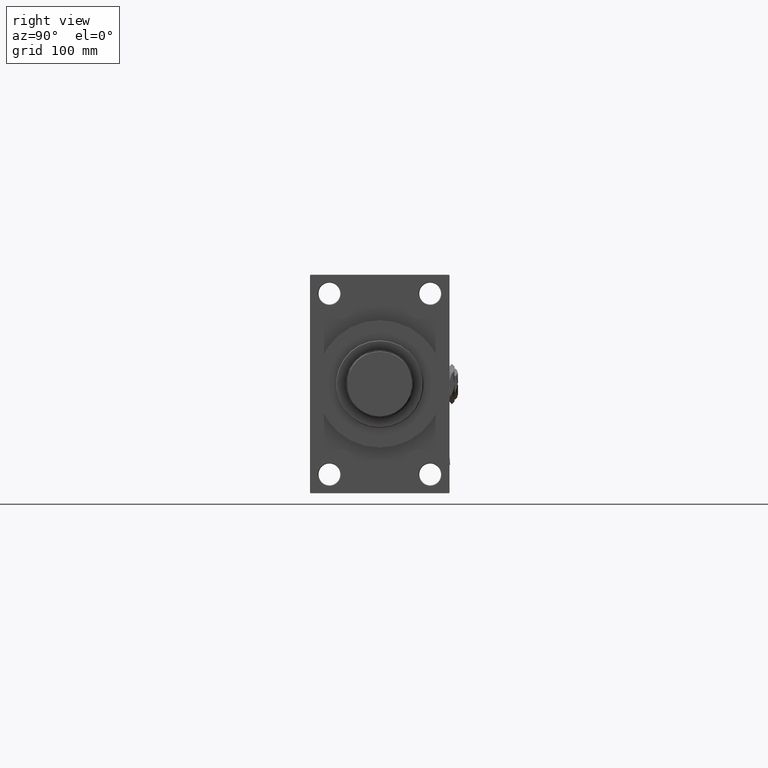
[diagram: clean part render]
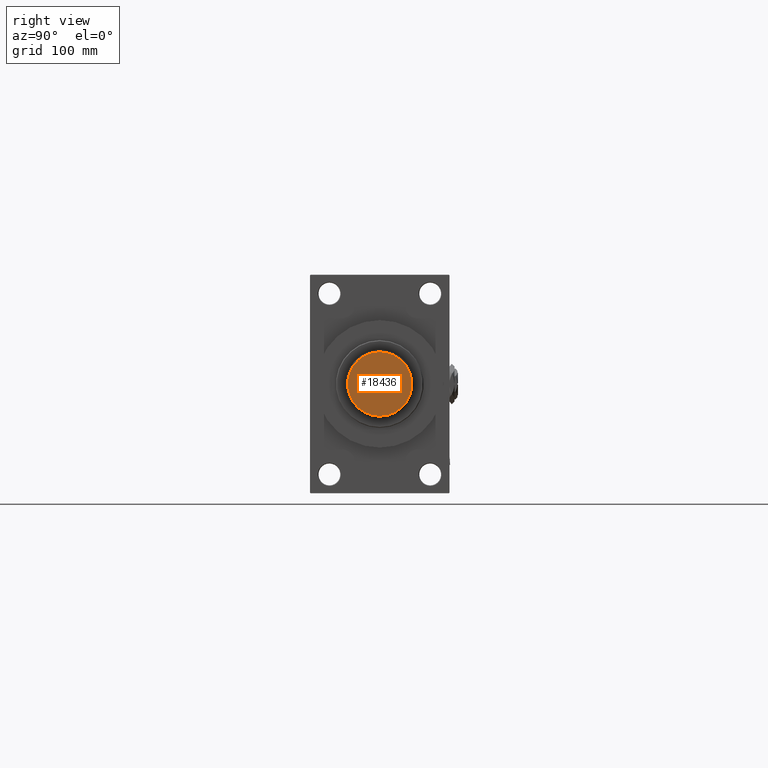
[diagram: same view with one face highlighted and labeled with its STEP entity id]
A machine part, right view. The second image highlights one B-rep face of the part: STEP entity #18436.
In plain terms, the highlighted planar face has unit normal (1, 0, 0).
Its self-contained STEP definition (entity closure, byte-faithful):
#955 = CARTESIAN_POINT ( 'NONE',  ( 0.000000000000000000, 0.000000000000000000, 0.000000000000000000 ) ) ;
#2101 = FACE_OUTER_BOUND ( 'NONE', #17096, .T. ) ;
#2270 = CARTESIAN_POINT ( 'NONE',  ( 26.50000000000000000, 0.000000000000000000, 0.000000000000000000 ) ) ;
#6286 = PLANE ( 'NONE',  #6795 ) ;
#6795 = AXIS2_PLACEMENT_3D ( 'NONE', #17823, #14643, #34596 ) ;
#7198 = DIRECTION ( 'NONE',  ( 0.000000000000000000, 0.000000000000000000, 1.000000000000000000 ) ) ;
#8005 = VERTEX_POINT ( 'NONE', #2270 ) ;
#11275 = EDGE_CURVE ( 'NONE', #8005, #46667, #35810, .T. ) ;
#14643 = DIRECTION ( 'NONE',  ( 0.000000000000000000, 0.000000000000000000, 1.000000000000000000 ) ) ;
#17096 = EDGE_LOOP ( 'NONE', ( #19472, #26875 ) ) ;
#17395 = AXIS2_PLACEMENT_3D ( 'NONE', #34738, #7198, #23709 ) ;
#17823 = CARTESIAN_POINT ( 'NONE',  ( 0.000000000000000000, 0.000000000000000000, 0.000000000000000000 ) ) ;
#18436 = ADVANCED_FACE ( 'NONE', ( #2101 ), #6286, .T. ) ;
#19472 = ORIENTED_EDGE ( 'NONE', *, *, #11275, .T. ) ;
#23709 = DIRECTION ( 'NONE',  ( 1.000000000000000000, 0.000000000000000000, 0.000000000000000000 ) ) ;
#25048 = DIRECTION ( 'NONE',  ( 1.000000000000000000, 0.000000000000000000, 0.000000000000000000 ) ) ;
#26875 = ORIENTED_EDGE ( 'NONE', *, *, #48583, .T. ) ;
#28040 = AXIS2_PLACEMENT_3D ( 'NONE', #955, #28206, #25048 ) ;
#28206 = DIRECTION ( 'NONE',  ( 0.000000000000000000, 0.000000000000000000, 1.000000000000000000 ) ) ;
#34596 = DIRECTION ( 'NONE',  ( 1.000000000000000000, 0.000000000000000000, -0.000000000000000000 ) ) ;
#34738 = CARTESIAN_POINT ( 'NONE',  ( 0.000000000000000000, 0.000000000000000000, 0.000000000000000000 ) ) ;
#35625 = CIRCLE ( 'NONE', #28040, 26.50000000000000000 ) ;
#35810 = CIRCLE ( 'NONE', #17395, 26.50000000000000000 ) ;
#41938 = CARTESIAN_POINT ( 'NONE',  ( -26.50000000000000000, 3.275930187719169552E-15, 0.000000000000000000 ) ) ;
#46667 = VERTEX_POINT ( 'NONE', #41938 ) ;
#48583 = EDGE_CURVE ( 'NONE', #46667, #8005, #35625, .T. ) ;